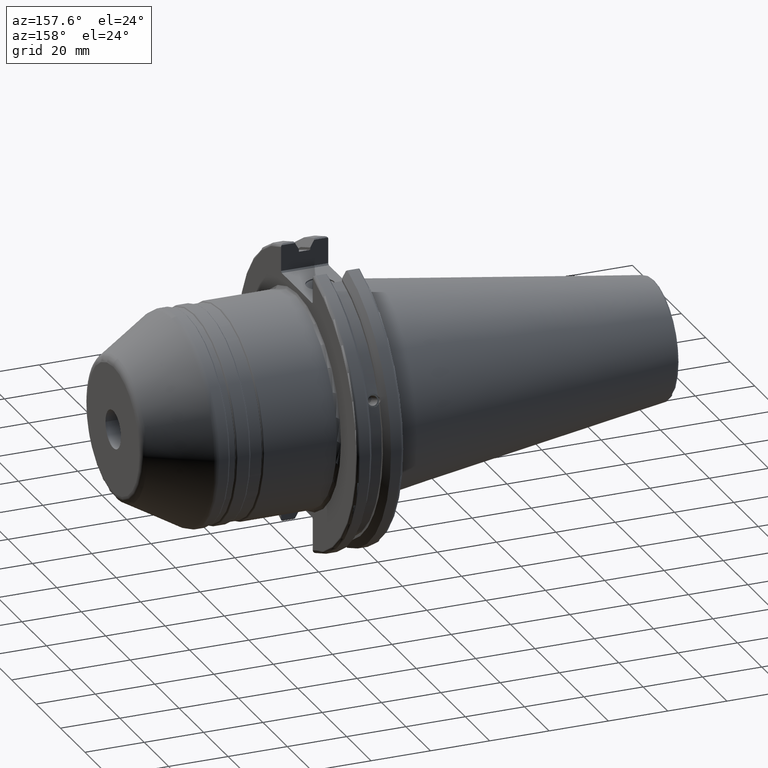
[diagram: clean part render]
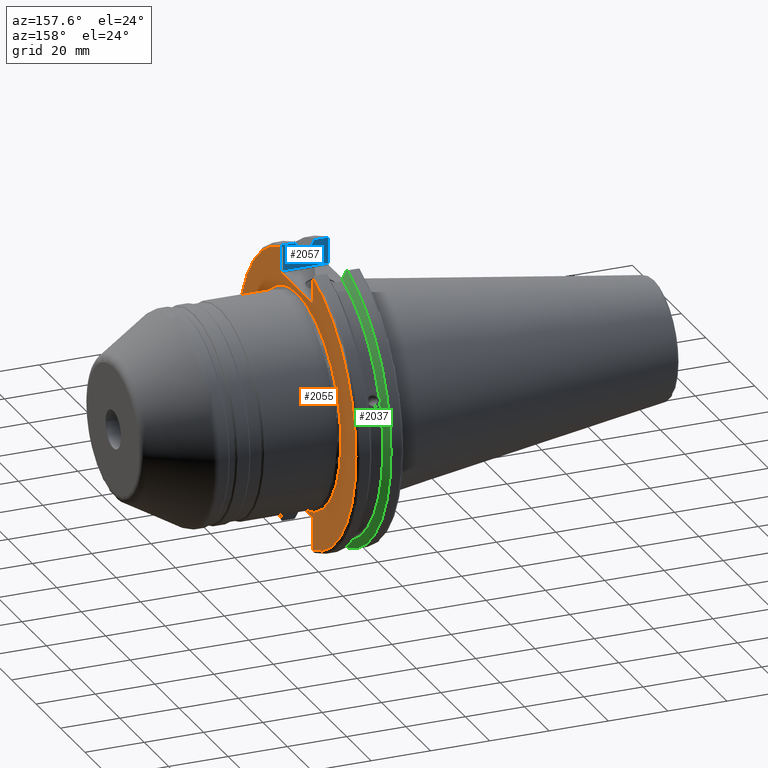
[diagram: same view with three faces highlighted in distinct colors, each labeled with its STEP entity id]
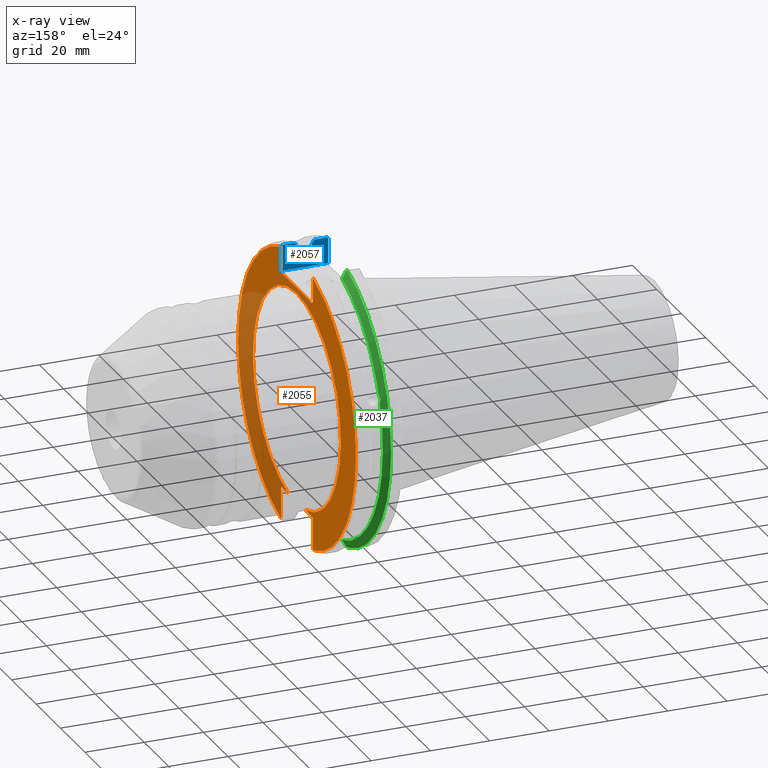
[diagram: x-ray of the same camera — body ghosted, the three highlighted faces saturated]
A machine part, auxiliary view with three faces highlighted in distinct colors.
The next image is the same camera in x-ray (body ghosted, the three faces saturated) — at least one of them is partly hidden behind the body in this view.
Their STEP definitions:

[orange] entity #2055 — the highlighted planar face has unit normal (1, 0, 0).
#47=PLANE('',#2315);
#224=FACE_OUTER_BOUND('',#342,.T.);
#342=EDGE_LOOP('',(#1732,#1733,#1734,#1735,#1736,#1737,#1738,#1739,#1740,
#1741,#1742,#1743,#1744,#1745));
#442=LINE('',#3901,#543);
#445=LINE('',#3916,#546);
#446=LINE('',#3917,#547);
#447=LINE('',#3919,#548);
#448=LINE('',#3921,#549);
#449=LINE('',#3923,#550);
#450=LINE('',#3925,#551);
#451=LINE('',#3927,#552);
#452=LINE('',#3931,#553);
#453=LINE('',#3933,#554);
#454=LINE('',#3934,#555);
#543=VECTOR('',#2842,10.);
#546=VECTOR('',#2847,10.);
#547=VECTOR('',#2848,10.);
#548=VECTOR('',#2849,10.);
#549=VECTOR('',#2850,10.);
#550=VECTOR('',#2851,10.);
#551=VECTOR('',#2852,10.);
#552=VECTOR('',#2853,10.);
#553=VECTOR('',#2856,10.);
#554=VECTOR('',#2857,10.);
#555=VECTOR('',#2858,10.);
#667=CIRCLE('',#2219,35.95);
#722=CIRCLE('',#2311,48.2125);
#724=CIRCLE('',#2316,48.2125);
#829=VERTEX_POINT('',#3336);
#830=VERTEX_POINT('',#3343);
#929=VERTEX_POINT('',#3856);
#930=VERTEX_POINT('',#3863);
#936=VERTEX_POINT('',#3900);
#938=VERTEX_POINT('',#3915);
#939=VERTEX_POINT('',#3918);
#940=VERTEX_POINT('',#3920);
#941=VERTEX_POINT('',#3922);
#942=VERTEX_POINT('',#3924);
#943=VERTEX_POINT('',#3926);
#944=VERTEX_POINT('',#3928);
#945=VERTEX_POINT('',#3930);
#946=VERTEX_POINT('',#3932);
#1086=EDGE_CURVE('',#829,#830,#667,.T.);
#1211=EDGE_CURVE('',#929,#930,#722,.T.);
#1219=EDGE_CURVE('',#936,#930,#442,.T.);
#1224=EDGE_CURVE('',#829,#938,#445,.T.);
#1225=EDGE_CURVE('',#936,#938,#446,.T.);
#1226=EDGE_CURVE('',#929,#939,#447,.T.);
#1227=EDGE_CURVE('',#940,#939,#448,.T.);
#1228=EDGE_CURVE('',#940,#941,#449,.T.);
#1229=EDGE_CURVE('',#942,#941,#450,.T.);
#1230=EDGE_CURVE('',#942,#943,#451,.T.);
#1231=EDGE_CURVE('',#944,#943,#724,.T.);
#1232=EDGE_CURVE('',#944,#945,#452,.T.);
#1233=EDGE_CURVE('',#946,#945,#453,.T.);
#1234=EDGE_CURVE('',#946,#830,#454,.T.);
#1732=ORIENTED_EDGE('',*,*,#1086,.F.);
#1733=ORIENTED_EDGE('',*,*,#1224,.T.);
#1734=ORIENTED_EDGE('',*,*,#1225,.F.);
#1735=ORIENTED_EDGE('',*,*,#1219,.T.);
#1736=ORIENTED_EDGE('',*,*,#1211,.F.);
#1737=ORIENTED_EDGE('',*,*,#1226,.T.);
#1738=ORIENTED_EDGE('',*,*,#1227,.F.);
#1739=ORIENTED_EDGE('',*,*,#1228,.T.);
#1740=ORIENTED_EDGE('',*,*,#1229,.F.);
#1741=ORIENTED_EDGE('',*,*,#1230,.T.);
#1742=ORIENTED_EDGE('',*,*,#1231,.F.);
#1743=ORIENTED_EDGE('',*,*,#1232,.T.);
#1744=ORIENTED_EDGE('',*,*,#1233,.F.);
#1745=ORIENTED_EDGE('',*,*,#1234,.T.);
#2055=ADVANCED_FACE('',(#224),#47,.T.);
#2219=AXIS2_PLACEMENT_3D('',#3344,#2606,#2607);
#2311=AXIS2_PLACEMENT_3D('',#3864,#2832,#2833);
#2315=AXIS2_PLACEMENT_3D('',#3914,#2845,#2846);
#2316=AXIS2_PLACEMENT_3D('',#3929,#2854,#2855);
#2606=DIRECTION('center_axis',(1.,0.,0.));
#2607=DIRECTION('ref_axis',(0.,-1.,-1.22464679914735E-16));
#2832=DIRECTION('center_axis',(-1.,0.,0.));
#2833=DIRECTION('ref_axis',(0.,1.,-6.12323399573677E-17));
#2842=DIRECTION('',(0.,0.,-1.));
#2845=DIRECTION('center_axis',(1.,0.,0.));
#2846=DIRECTION('ref_axis',(0.,0.,-1.));
#2847=DIRECTION('',(0.,1.,0.));
#2848=DIRECTION('',(0.,-0.707106781186549,0.707106781186546));
#2849=DIRECTION('',(0.,0.,-1.));
#2850=DIRECTION('',(0.,0.707106781186549,0.707106781186546));
#2851=DIRECTION('',(0.,-1.,0.));
#2852=DIRECTION('',(0.,0.707106781186549,-0.707106781186546));
#2853=DIRECTION('',(0.,0.,1.));
#2854=DIRECTION('center_axis',(-1.,0.,0.));
#2855=DIRECTION('ref_axis',(0.,-1.,1.60812264967664E-16));
#2856=DIRECTION('',(0.,0.,1.));
#2857=DIRECTION('',(0.,-0.707106781186549,-0.707106781186546));
#2858=DIRECTION('',(0.,1.,0.));
#3336=CARTESIAN_POINT('',(19.05,6.77413197391374,-35.306));
#3343=CARTESIAN_POINT('',(19.05,-6.77413197391374,-35.306));
#3344=CARTESIAN_POINT('Origin',(19.05,0.,0.));
#3856=CARTESIAN_POINT('',(19.05,12.95,46.4407434937254));
#3863=CARTESIAN_POINT('',(19.05,12.95,-46.4407434937254));
#3864=CARTESIAN_POINT('Origin',(19.05,0.,0.));
#3900=CARTESIAN_POINT('',(19.05,12.95,-35.806));
#3901=CARTESIAN_POINT('',(19.05,12.95,-17.653));
#3914=CARTESIAN_POINT('Origin',(19.05,0.,0.));
#3915=CARTESIAN_POINT('',(19.05,12.45,-35.306));
#3916=CARTESIAN_POINT('',(19.05,-3.33066907387547E-15,-35.306));
#3917=CARTESIAN_POINT('',(19.05,0.635999999999982,-23.492));
#3918=CARTESIAN_POINT('',(19.05,12.95,38.219));
#3919=CARTESIAN_POINT('',(19.05,12.95,18.8595));
#3920=CARTESIAN_POINT('',(19.05,12.45,37.719));
#3921=CARTESIAN_POINT('',(19.05,0.0327499999999836,25.30175));
#3922=CARTESIAN_POINT('',(19.05,-12.45,37.719));
#3923=CARTESIAN_POINT('',(19.05,0.,37.719));
#3924=CARTESIAN_POINT('',(19.05,-12.95,38.219));
#3925=CARTESIAN_POINT('',(19.05,-0.0327499999999817,25.30175));
#3926=CARTESIAN_POINT('',(19.05,-12.95,46.4407434937254));
#3927=CARTESIAN_POINT('',(19.05,-12.95,18.8595));
#3928=CARTESIAN_POINT('',(19.05,-12.95,-46.4407434937254));
#3929=CARTESIAN_POINT('Origin',(19.05,0.,0.));
#3930=CARTESIAN_POINT('',(19.05,-12.95,-35.806));
#3931=CARTESIAN_POINT('',(19.05,-12.95,-17.653));
#3932=CARTESIAN_POINT('',(19.05,-12.45,-35.306));
#3933=CARTESIAN_POINT('',(19.05,-0.635999999999989,-23.492));
#3934=CARTESIAN_POINT('',(19.05,-3.33066907387547E-15,-35.306));

[blue] entity #2057 — the highlighted planar face has unit normal (-0, -1, 0).
#18=(
BOUNDED_CURVE()
B_SPLINE_CURVE(2,(#3540,#3541,#3542),.UNSPECIFIED.,.F.,.F.)
B_SPLINE_CURVE_WITH_KNOTS((3,3),(0.0558332664531015,0.331657177124503),
 .UNSPECIFIED.)
CURVE()
GEOMETRIC_REPRESENTATION_ITEM()
RATIONAL_B_SPLINE_CURVE((1.00012873636668,1.00038235574129,1.))
REPRESENTATION_ITEM('')
);
#25=(
BOUNDED_CURVE()
B_SPLINE_CURVE(2,(#3981,#3982,#3983),.UNSPECIFIED.,.F.,.F.)
B_SPLINE_CURVE_WITH_KNOTS((3,3),(0.,0.275823910674601),.UNSPECIFIED.)
CURVE()
GEOMETRIC_REPRESENTATION_ITEM()
RATIONAL_B_SPLINE_CURVE((1.,1.00038235573593,1.00012873636487))
REPRESENTATION_ITEM('')
);
#48=PLANE('',#2319);
#153=B_SPLINE_CURVE_WITH_KNOTS('',3,(#3944,#3945,#3946,#3947,#3948,#3949),
 .UNSPECIFIED.,.F.,.F.,(4,2,4),(0.452859694247731,0.491383469061936,0.506034728678978),
 .UNSPECIFIED.);
#156=B_SPLINE_CURVE_WITH_KNOTS('',3,(#3972,#3973,#3974,#3975,#3976,#3977),
 .UNSPECIFIED.,.F.,.F.,(4,2,4),(0.0976892167532858,0.112000071948292,0.150881870548587),
 .UNSPECIFIED.);
#226=FACE_OUTER_BOUND('',#344,.T.);
#344=EDGE_LOOP('',(#1752,#1753,#1754,#1755,#1756,#1757,#1758,#1759,#1760,
#1761,#1762,#1763));
#429=LINE('',#3828,#530);
#451=LINE('',#3927,#552);
#455=LINE('',#3970,#556);
#456=LINE('',#3979,#557);
#457=LINE('',#3985,#558);
#458=LINE('',#3987,#559);
#459=LINE('',#3988,#560);
#460=LINE('',#3989,#561);
#530=VECTOR('',#2811,10.);
#552=VECTOR('',#2853,10.);
#556=VECTOR('',#2865,10.);
#557=VECTOR('',#2866,10.);
#558=VECTOR('',#2867,10.);
#559=VECTOR('',#2868,10.);
#560=VECTOR('',#2869,10.);
#561=VECTOR('',#2870,10.);
#864=VERTEX_POINT('',#3535);
#865=VERTEX_POINT('',#3539);
#914=VERTEX_POINT('',#3824);
#916=VERTEX_POINT('',#3827);
#942=VERTEX_POINT('',#3924);
#943=VERTEX_POINT('',#3926);
#948=VERTEX_POINT('',#3943);
#951=VERTEX_POINT('',#3971);
#952=VERTEX_POINT('',#3978);
#953=VERTEX_POINT('',#3980);
#954=VERTEX_POINT('',#3984);
#955=VERTEX_POINT('',#3986);
#1128=EDGE_CURVE('',#864,#865,#18,.T.);
#1196=EDGE_CURVE('',#914,#916,#429,.T.);
#1230=EDGE_CURVE('',#942,#943,#451,.T.);
#1236=EDGE_CURVE('',#943,#948,#153,.T.);
#1240=EDGE_CURVE('',#916,#942,#455,.T.);
#1241=EDGE_CURVE('',#951,#914,#156,.T.);
#1242=EDGE_CURVE('',#952,#951,#456,.T.);
#1243=EDGE_CURVE('',#953,#952,#25,.T.);
#1244=EDGE_CURVE('',#954,#953,#457,.T.);
#1245=EDGE_CURVE('',#955,#954,#458,.T.);
#1246=EDGE_CURVE('',#865,#955,#459,.T.);
#1247=EDGE_CURVE('',#948,#864,#460,.T.);
#1752=ORIENTED_EDGE('',*,*,#1236,.F.);
#1753=ORIENTED_EDGE('',*,*,#1230,.F.);
#1754=ORIENTED_EDGE('',*,*,#1240,.F.);
#1755=ORIENTED_EDGE('',*,*,#1196,.F.);
#1756=ORIENTED_EDGE('',*,*,#1241,.F.);
#1757=ORIENTED_EDGE('',*,*,#1242,.F.);
#1758=ORIENTED_EDGE('',*,*,#1243,.F.);
#1759=ORIENTED_EDGE('',*,*,#1244,.F.);
#1760=ORIENTED_EDGE('',*,*,#1245,.F.);
#1761=ORIENTED_EDGE('',*,*,#1246,.F.);
#1762=ORIENTED_EDGE('',*,*,#1128,.F.);
#1763=ORIENTED_EDGE('',*,*,#1247,.F.);
#2057=ADVANCED_FACE('',(#226),#48,.F.);
#2319=AXIS2_PLACEMENT_3D('',#3969,#2863,#2864);
#2811=DIRECTION('',(0.,0.,-1.));
#2853=DIRECTION('',(0.,0.,1.));
#2863=DIRECTION('center_axis',(-1.31581988103722E-16,-1.,0.));
#2864=DIRECTION('ref_axis',(1.,-1.31581988103722E-16,0.));
#2865=DIRECTION('',(1.,-1.31581988103722E-16,0.));
#2866=DIRECTION('',(-1.,1.31581988103722E-16,0.));
#2867=DIRECTION('',(0.,0.,1.));
#2868=DIRECTION('',(-1.,0.,0.));
#2869=DIRECTION('',(0.,0.,-1.));
#2870=DIRECTION('',(-1.,1.31581988103722E-16,0.));
#3535=CARTESIAN_POINT('',(14.3818103943757,-12.95,46.9780755322918));
#3539=CARTESIAN_POINT('',(13.0491,-12.95,44.5791147973604));
#3540=CARTESIAN_POINT('Ctrl Pts',(14.3818103943757,-12.95,46.9780755322918));
#3541=CARTESIAN_POINT('Ctrl Pts',(13.6979955094846,-12.95,45.7494966802924));
#3542=CARTESIAN_POINT('Ctrl Pts',(13.0491,-12.95,44.5791147973604));
#3824=CARTESIAN_POINT('',(3.175,-12.95,46.4407434937254));
#3827=CARTESIAN_POINT('',(3.175,-12.95,38.219));
#3828=CARTESIAN_POINT('',(3.175,-12.95,18.8595));
#3924=CARTESIAN_POINT('',(19.05,-12.95,38.219));
#3926=CARTESIAN_POINT('',(19.05,-12.95,46.4407434937254));
#3927=CARTESIAN_POINT('',(19.05,-12.95,18.8595));
#3943=CARTESIAN_POINT('',(18.9055020570566,-12.95,46.9780755322918));
#3944=CARTESIAN_POINT('Ctrl Pts',(19.05,-12.95,46.4407434937254));
#3945=CARTESIAN_POINT('Ctrl Pts',(19.05,-12.95,46.5691560764394));
#3946=CARTESIAN_POINT('Ctrl Pts',(19.0209992543299,-12.95,46.7204975987179));
#3947=CARTESIAN_POINT('Ctrl Pts',(18.9549831813775,-12.95,46.8849952622217));
#3948=CARTESIAN_POINT('Ctrl Pts',(18.9322353702005,-12.95,46.9322596399785));
#3949=CARTESIAN_POINT('Ctrl Pts',(18.9055020570566,-12.95,46.9780755322918));
#3969=CARTESIAN_POINT('Origin',(3.175,-12.95,37.719));
#3970=CARTESIAN_POINT('',(10.63125,-12.95,38.219));
#3971=CARTESIAN_POINT('',(3.31949794294344,-12.95,46.9780755322918));
#3972=CARTESIAN_POINT('Ctrl Pts',(3.31949794294344,-12.95,46.9780755322918));
#3973=CARTESIAN_POINT('Ctrl Pts',(3.29341556483839,-12.95,46.9333752207329));
#3974=CARTESIAN_POINT('Ctrl Pts',(3.27115672912336,-12.95,46.887363294568));
#3975=CARTESIAN_POINT('Ctrl Pts',(3.20453530071253,-12.95,46.7230464903732));
#3976=CARTESIAN_POINT('Ctrl Pts',(3.175,-12.95,46.5703494890597));
#3977=CARTESIAN_POINT('Ctrl Pts',(3.175,-12.95,46.4407434937254));
#3978=CARTESIAN_POINT('',(7.88638960562424,-12.95,46.9780755322918));
#3979=CARTESIAN_POINT('',(5.39149548297563,-12.95,46.9780755322918));
#3980=CARTESIAN_POINT('',(9.2191,-12.95,44.5791147973604));
#3981=CARTESIAN_POINT('Ctrl Pts',(9.2191,-12.95,44.5791147973604));
#3982=CARTESIAN_POINT('Ctrl Pts',(8.57020449055857,-12.95,45.7494966802148));
#3983=CARTESIAN_POINT('Ctrl Pts',(7.88638960562424,-12.95,46.9780755322918));
#3984=CARTESIAN_POINT('',(9.2191,-12.95,43.7678716897452));
#3985=CARTESIAN_POINT('',(9.2191,-12.95,18.8595));
#3986=CARTESIAN_POINT('',(13.0491,-12.95,43.7678716897452));
#3987=CARTESIAN_POINT('',(11.1341,-12.95,43.7678716897452));
#3988=CARTESIAN_POINT('',(13.0491,-12.95,18.8595));
#3989=CARTESIAN_POINT('',(16.8551045170244,-12.95,46.9780755322918));

[green] entity #2037 — the highlighted conical surface has half-angle 60 deg.
#19=(
BOUNDED_CURVE()
B_SPLINE_CURVE(2,(#3739,#3740,#3741),.UNSPECIFIED.,.F.,.F.)
B_SPLINE_CURVE_WITH_KNOTS((3,3),(0.,0.275823910674652),.UNSPECIFIED.)
CURVE()
GEOMETRIC_REPRESENTATION_ITEM()
RATIONAL_B_SPLINE_CURVE((1.,1.00038235573731,1.00012873636533))
REPRESENTATION_ITEM('')
);
#20=(
BOUNDED_CURVE()
B_SPLINE_CURVE(2,(#3743,#3744,#3745),.UNSPECIFIED.,.F.,.F.)
B_SPLINE_CURVE_WITH_KNOTS((3,3),(0.,0.0648240472898323),.UNSPECIFIED.)
CURVE()
GEOMETRIC_REPRESENTATION_ITEM()
RATIONAL_B_SPLINE_CURVE((1.,1.00011477674853,1.00019140645976))
REPRESENTATION_ITEM('')
);
#21=(
BOUNDED_CURVE()
B_SPLINE_CURVE(2,(#3749,#3750,#3751),.UNSPECIFIED.,.F.,.F.)
B_SPLINE_CURVE_WITH_KNOTS((3,3),(0.325260944932483,0.390084992222205),
 .UNSPECIFIED.)
CURVE()
GEOMETRIC_REPRESENTATION_ITEM()
RATIONAL_B_SPLINE_CURVE((1.00019140645955,1.00011477674841,1.))
REPRESENTATION_ITEM('')
);
#22=(
BOUNDED_CURVE()
B_SPLINE_CURVE(2,(#3753,#3754,#3755),.UNSPECIFIED.,.F.,.F.)
B_SPLINE_CURVE_WITH_KNOTS((3,3),(0.0558332664491378,0.331657177124507),
 .UNSPECIFIED.)
CURVE()
GEOMETRIC_REPRESENTATION_ITEM()
RATIONAL_B_SPLINE_CURVE((1.00012873637135,1.00038235575519,1.))
REPRESENTATION_ITEM('')
);
#77=CONICAL_SURFACE('',#2266,47.8172386482472,1.0471975511966);
#144=B_SPLINE_CURVE_WITH_KNOTS('',3,(#3693,#3694,#3695,#3696,#3697,#3698,
#3699,#3700,#3701,#3702,#3703,#3704,#3705,#3706),.UNSPECIFIED.,.F.,.F.,
(4,2,2,2,2,2,4),(0.426712868358718,0.441644498666905,0.480313313223129,
0.518982127779353,0.557650942335577,0.596319756891801,0.611251387199986),
 .UNSPECIFIED.);
#206=FACE_OUTER_BOUND('',#318,.T.);
#318=EDGE_LOOP('',(#1616,#1617,#1618,#1619,#1620,#1621,#1622,#1623));
#694=CIRCLE('',#2267,46.4219772964944);
#695=CIRCLE('',#2268,49.2125);
#696=CIRCLE('',#2269,46.4219772964944);
#881=VERTEX_POINT('',#3690);
#882=VERTEX_POINT('',#3692);
#886=VERTEX_POINT('',#3736);
#887=VERTEX_POINT('',#3738);
#888=VERTEX_POINT('',#3742);
#889=VERTEX_POINT('',#3746);
#890=VERTEX_POINT('',#3748);
#891=VERTEX_POINT('',#3752);
#1151=EDGE_CURVE('',#882,#881,#144,.T.);
#1156=EDGE_CURVE('',#886,#881,#694,.T.);
#1157=EDGE_CURVE('',#886,#887,#19,.T.);
#1158=EDGE_CURVE('',#888,#887,#20,.T.);
#1159=EDGE_CURVE('',#888,#889,#695,.T.);
#1160=EDGE_CURVE('',#890,#889,#21,.T.);
#1161=EDGE_CURVE('',#890,#891,#22,.T.);
#1162=EDGE_CURVE('',#882,#891,#696,.T.);
#1616=ORIENTED_EDGE('',*,*,#1151,.T.);
#1617=ORIENTED_EDGE('',*,*,#1156,.F.);
#1618=ORIENTED_EDGE('',*,*,#1157,.T.);
#1619=ORIENTED_EDGE('',*,*,#1158,.F.);
#1620=ORIENTED_EDGE('',*,*,#1159,.T.);
#1621=ORIENTED_EDGE('',*,*,#1160,.F.);
#1622=ORIENTED_EDGE('',*,*,#1161,.T.);
#1623=ORIENTED_EDGE('',*,*,#1162,.F.);
#2037=ADVANCED_FACE('',(#206),#77,.T.);
#2266=AXIS2_PLACEMENT_3D('',#3735,#2721,#2722);
#2267=AXIS2_PLACEMENT_3D('',#3737,#2723,#2724);
#2268=AXIS2_PLACEMENT_3D('',#3747,#2725,#2726);
#2269=AXIS2_PLACEMENT_3D('',#3756,#2727,#2728);
#2721=DIRECTION('center_axis',(-1.,0.,0.));
#2722=DIRECTION('ref_axis',(0.,1.,0.));
#2723=DIRECTION('center_axis',(1.,0.,0.));
#2724=DIRECTION('ref_axis',(0.,0.,-1.));
#2725=DIRECTION('center_axis',(1.,0.,0.));
#2726=DIRECTION('ref_axis',(0.,0.,-1.));
#2727=DIRECTION('center_axis',(1.,0.,0.));
#2728=DIRECTION('ref_axis',(0.,0.,-1.));
#3690=CARTESIAN_POINT('',(9.2191,43.9096390749305,15.0646464421033));
#3692=CARTESIAN_POINT('',(9.2191,43.3201030900029,16.684383248648));
#3693=CARTESIAN_POINT('Ctrl Pts',(9.21910000000001,43.3201030900029,16.6843832486479));
#3694=CARTESIAN_POINT('Ctrl Pts',(9.20211843903392,43.3613106941341,16.6592273018006));
#3695=CARTESIAN_POINT('Ctrl Pts',(9.18608675403323,43.4012416983557,16.6326763251437));
#3696=CARTESIAN_POINT('Ctrl Pts',(9.13238673845037,43.539103734322,16.5325130832406));
#3697=CARTESIAN_POINT('Ctrl Pts',(9.09621610663555,43.6406982153491,16.441180795372));
#3698=CARTESIAN_POINT('Ctrl Pts',(9.04690868251975,43.8110833825827,16.2291323464527));
#3699=CARTESIAN_POINT('Ctrl Pts',(9.0341,43.8794096049168,16.10796730316));
#3700=CARTESIAN_POINT('Ctrl Pts',(9.0341,43.9675796948952,15.8657219718732));
#3701=CARTESIAN_POINT('Ctrl Pts',(9.04690868251975,43.9931221605126,15.7289849146254));
#3702=CARTESIAN_POINT('Ctrl Pts',(9.09621610663555,43.9989016655819,15.4570249042868));
#3703=CARTESIAN_POINT('Ctrl Pts',(9.13238673845037,43.9797830409458,15.3217566390708));
#3704=CARTESIAN_POINT('Ctrl Pts',(9.18608675403322,43.9385582852181,15.1564111356409));
#3705=CARTESIAN_POINT('Ctrl Pts',(9.20211843903391,43.9250360001461,15.1104047527575));
#3706=CARTESIAN_POINT('Ctrl Pts',(9.2191,43.9096390749305,15.0646464421033));
#3735=CARTESIAN_POINT('Origin',(8.41354548297563,0.,0.));
#3736=CARTESIAN_POINT('',(9.2191,12.95,-44.5791147973604));
#3737=CARTESIAN_POINT('Origin',(9.2191,0.,0.));
#3738=CARTESIAN_POINT('',(7.88638960562424,12.95,-46.9780755322918));
#3739=CARTESIAN_POINT('Ctrl Pts',(9.2191,12.95,-44.5791147973604));
#3740=CARTESIAN_POINT('Ctrl Pts',(8.57020449055827,12.95,-45.7494966802153));
#3741=CARTESIAN_POINT('Ctrl Pts',(7.88638960562424,12.95,-46.9780755322918));
#3742=CARTESIAN_POINT('',(7.60799096595127,13.4317035994433,-47.3440544806494));
#3743=CARTESIAN_POINT('Ctrl Pts',(7.60799096595127,13.4317035994433,-47.3440544806494));
#3744=CARTESIAN_POINT('Ctrl Pts',(7.74826896663818,13.1896660169966,-47.1601640966265));
#3745=CARTESIAN_POINT('Ctrl Pts',(7.88638960562424,12.95,-46.9780755322918));
#3746=CARTESIAN_POINT('',(7.60799096595127,13.4317035994433,47.3440544806494));
#3747=CARTESIAN_POINT('Origin',(7.60799096595127,0.,0.));
#3748=CARTESIAN_POINT('',(7.88638960562424,12.95,46.9780755322918));
#3749=CARTESIAN_POINT('Ctrl Pts',(7.88638960562424,12.95,46.9780755322917));
#3750=CARTESIAN_POINT('Ctrl Pts',(7.74826896663821,13.1896660169966,47.1601640966264));
#3751=CARTESIAN_POINT('Ctrl Pts',(7.60799096595127,13.4317035994433,47.3440544806494));
#3752=CARTESIAN_POINT('',(9.2191,12.95,44.5791147973604));
#3753=CARTESIAN_POINT('Ctrl Pts',(7.88638960562424,12.95,46.9780755322918));
#3754=CARTESIAN_POINT('Ctrl Pts',(8.57020449055492,12.95,45.7494966802213));
#3755=CARTESIAN_POINT('Ctrl Pts',(9.2191,12.95,44.5791147973604));
#3756=CARTESIAN_POINT('Origin',(9.2191,0.,0.));